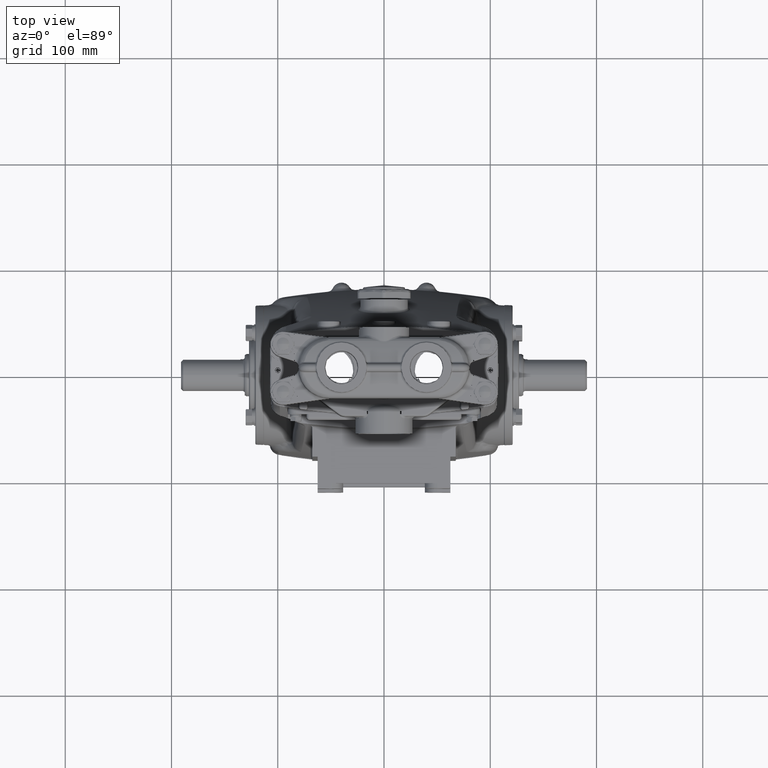
[diagram: clean part render]
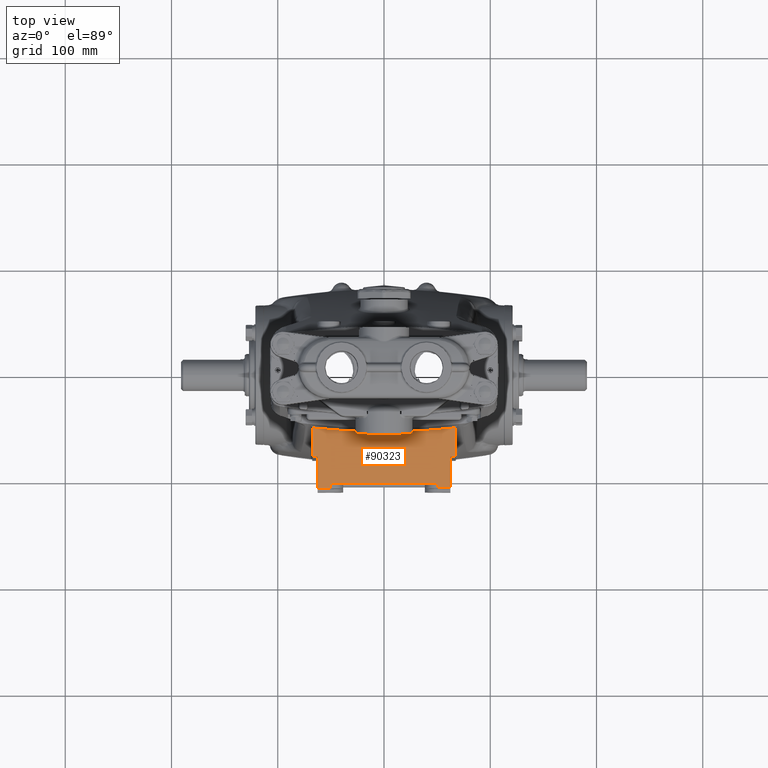
[diagram: same view with one face highlighted and labeled with its STEP entity id]
A machine part, top view. The second image highlights one B-rep face of the part: STEP entity #90323.
In plain terms, the highlighted planar face has unit normal (0, 0, -1).
Its self-contained STEP definition (entity closure, byte-faithful):
#57 = CARTESIAN_POINT ( 'NONE',  ( -2.657480314960630086, 19685.03937007874265, 7.519685039370077817 ) ) ;
#1021 = CARTESIAN_POINT ( 'NONE',  ( 2.216167371312572687, -2.133921736559586613, 7.519685039370080482 ) ) ;
#1441 = CARTESIAN_POINT ( 'NONE',  ( -2.460629921259841701, 19685.03937007874265, 7.519685039370078705 ) ) ;
#2178 = CARTESIAN_POINT ( 'NONE',  ( -2.657480314960630086, -3.149606299212598604, 7.519685039370077817 ) ) ;
#2653 = CARTESIAN_POINT ( 'NONE',  ( -2.657480314960634082, -2.088214653054334846, 7.519685039370078705 ) ) ;
#3544 = DIRECTION ( 'NONE',  ( 1.000000000000000000, -0.000000000000000000, -0.000000000000000000 ) ) ;
#3834 = LINE ( 'NONE', #92589, #95593 ) ;
#4233 = CARTESIAN_POINT ( 'NONE',  ( -2.657559491806077645, -2.086138464083541866, 7.519685039370078705 ) ) ;
#5397 = LINE ( 'NONE', #70849, #78034 ) ;
#6057 = VECTOR ( 'NONE', #72678, 39.37007874015748143 ) ;
#6653 = PLANE ( 'NONE',  #32123 ) ;
#7728 = LINE ( 'NONE', #15095, #6057 ) ;
#8548 = VERTEX_POINT ( 'NONE', #82896 ) ;
#8901 = ORIENTED_EDGE ( 'NONE', *, *, #57869, .T. ) ;
#8943 = CARTESIAN_POINT ( 'NONE',  ( -6.927127178268874649E-16, -2.233563264182857999, 7.519685039370078705 ) ) ;
#9696 = EDGE_CURVE ( 'NONE', #8548, #75186, #48101, .T. ) ;
#10825 = EDGE_CURVE ( 'NONE', #88389, #22255, #5397, .T. ) ;
#11100 = CARTESIAN_POINT ( 'NONE',  ( -2.657480314960630086, -2.090289336285340749, 7.519685039370077817 ) ) ;
#12173 = CARTESIAN_POINT ( 'NONE',  ( -1.988188976377950112, -4.133858267716535195, 7.519685039370078705 ) ) ;
#14349 = DIRECTION ( 'NONE',  ( -1.000000000000000000, -0.000000000000000000, -0.000000000000000000 ) ) ;
#15095 = CARTESIAN_POINT ( 'NONE',  ( -1.988188976377950556, -4.291338582676395674, 7.519685039370078705 ) ) ;
#16917 = DIRECTION ( 'NONE',  ( -0.000000000000000000, -1.000000000000000000, -0.000000000000000000 ) ) ;
#17223 = VECTOR ( 'NONE', #3544, 39.37007874015748143 ) ;
#17271 = CARTESIAN_POINT ( 'NONE',  ( -2.657480314960630086, -3.149606299212598604, 7.519685039370077817 ) ) ;
#17874 = ORIENTED_EDGE ( 'NONE', *, *, #103480, .T. ) ;
#19702 = VERTEX_POINT ( 'NONE', #71812 ) ;
#19805 = VECTOR ( 'NONE', #14349, 39.37007874015748143 ) ;
#19954 = EDGE_CURVE ( 'NONE', #102189, #19702, #47814, .T. ) ;
#20053 = CARTESIAN_POINT ( 'NONE',  ( -2.216167371312541601, -2.133921736559592830, 7.519685039370080482 ) ) ;
#20179 = DIRECTION ( 'NONE',  ( 0.000000000000000000, -1.000000000000000000, -0.000000000000000000 ) ) ;
#21609 = B_SPLINE_CURVE_WITH_KNOTS ( 'NONE', 3,
 ( #26920, #4233, #2653, #11100 ),
 .UNSPECIFIED., .F., .F.,
 ( 4, 4 ),
 ( 0.000000000000000000, 0.0001580908622162033002 ),
 .UNSPECIFIED. ) ;
#21611 = CARTESIAN_POINT ( 'NONE',  ( -6.927127178268874649E-16, -2.233563264182857999, 7.519685039370078705 ) ) ;
#22255 = VERTEX_POINT ( 'NONE', #74145 ) ;
#22261 = VECTOR ( 'NONE', #45956, 39.37007874015748143 ) ;
#22593 = CARTESIAN_POINT ( 'NONE',  ( 2.657559491806074981, -2.086138464083594712, 7.519685039370078705 ) ) ;
#22788 = LINE ( 'NONE', #62927, #19805 ) ;
#23875 = EDGE_CURVE ( 'NONE', #53139, #88389, #29560, .T. ) ;
#24572 = ORIENTED_EDGE ( 'NONE', *, *, #45606, .F. ) ;
#25333 = ORIENTED_EDGE ( 'NONE', *, *, #89369, .T. ) ;
#26176 = ORIENTED_EDGE ( 'NONE', *, *, #101534, .T. ) ;
#26354 = DIRECTION ( 'NONE',  ( 0.000000000000000000, -1.000000000000000000, -0.000000000000000000 ) ) ;
#26749 = CARTESIAN_POINT ( 'NONE',  ( -1.988188976377950556, 19685.03937007874265, 7.519685039370078705 ) ) ;
#26920 = CARTESIAN_POINT ( 'NONE',  ( -2.657717525373034739, -2.084069808505191634, 7.519685039370078705 ) ) ;
#29503 = CARTESIAN_POINT ( 'NONE',  ( -0.4443542664897027206, -2.233563264182857999, 7.519685039370078705 ) ) ;
#29560 = LINE ( 'NONE', #53875, #22261 ) ;
#32123 = AXIS2_PLACEMENT_3D ( 'NONE', #57688, #95393, #70560 ) ;
#32553 = DIRECTION ( 'NONE',  ( -0.000000000000000000, -1.000000000000000000, -0.000000000000000000 ) ) ;
#37568 = DIRECTION ( 'NONE',  ( -1.000000000000000000, 0.000000000000000000, 0.000000000000000000 ) ) ;
#37778 = LINE ( 'NONE', #77955, #17223 ) ;
#37804 = ORIENTED_EDGE ( 'NONE', *, *, #81413, .F. ) ;
#38043 = VECTOR ( 'NONE', #26354, 39.37007874015748143 ) ;
#38183 = CARTESIAN_POINT ( 'NONE',  ( 2.657480314960630086, -2.090289336285340749, 7.519685039370077817 ) ) ;
#38309 = FACE_OUTER_BOUND ( 'NONE', #89767, .T. ) ;
#38834 = VERTEX_POINT ( 'NONE', #12173 ) ;
#40362 = EDGE_CURVE ( 'NONE', #19702, #80501, #67491, .T. ) ;
#40978 = VECTOR ( 'NONE', #57627, 39.37007874015748143 ) ;
#41163 = VERTEX_POINT ( 'NONE', #81008 ) ;
#41689 = CARTESIAN_POINT ( 'NONE',  ( 2.460629921259841701, 19685.03937007874265, 7.519685039370078705 ) ) ;
#45606 = EDGE_CURVE ( 'NONE', #22255, #48671, #67036, .T. ) ;
#45956 = DIRECTION ( 'NONE',  ( 0.000000000000000000, -1.000000000000000000, -0.000000000000000000 ) ) ;
#47814 = B_SPLINE_CURVE_WITH_KNOTS ( 'NONE', 3,
 ( #49051, #1021, #89732, #89218, #50109, #8943 ),
 .UNSPECIFIED., .F., .F.,
 ( 4, 2, 4 ),
 ( -6.053836689116898128E-06, 0.03380031263407504843, 0.06760667910483923737 ),
 .UNSPECIFIED. ) ;
#48101 = LINE ( 'NONE', #57, #68101 ) ;
#48259 = VERTEX_POINT ( 'NONE', #86556 ) ;
#48671 = VERTEX_POINT ( 'NONE', #75668 ) ;
#48726 = EDGE_CURVE ( 'NONE', #41163, #75819, #3834, .T. ) ;
#49051 = CARTESIAN_POINT ( 'NONE',  ( 2.657717525373036072, -2.084069808505191190, 7.519685039370078705 ) ) ;
#49416 = EDGE_CURVE ( 'NONE', #38834, #48259, #98629, .T. ) ;
#50109 = CARTESIAN_POINT ( 'NONE',  ( 0.4443542664897018879, -2.233563264182857555, 7.519685039370078705 ) ) ;
#51918 = CARTESIAN_POINT ( 'NONE',  ( 2.657480314960630086, -3.149606299212598604, 7.519685039370077817 ) ) ;
#53139 = VERTEX_POINT ( 'NONE', #38183 ) ;
#53875 = CARTESIAN_POINT ( 'NONE',  ( 2.657480314960630086, 19685.03937007874265, 7.519685039370077817 ) ) ;
#55356 = CARTESIAN_POINT ( 'NONE',  ( 2.657717525373036072, -2.084069808505191190, 7.519685039370078705 ) ) ;
#57627 = DIRECTION ( 'NONE',  ( 1.000000000000000000, 0.000000000000000000, 0.000000000000000000 ) ) ;
#57688 = CARTESIAN_POINT ( 'NONE',  ( -1.988188976377950556, 19685.03937007874265, 7.519685039370078705 ) ) ;
#57869 = EDGE_CURVE ( 'NONE', #80501, #8548, #21609, .T. ) ;
#58090 = ORIENTED_EDGE ( 'NONE', *, *, #9696, .T. ) ;
#60585 = ORIENTED_EDGE ( 'NONE', *, *, #83323, .T. ) ;
#61650 = ORIENTED_EDGE ( 'NONE', *, *, #49416, .F. ) ;
#62927 = CARTESIAN_POINT ( 'NONE',  ( -2.460629921259841701, -4.133858267716535195, 7.519685039370078705 ) ) ;
#64539 = ORIENTED_EDGE ( 'NONE', *, *, #48726, .T. ) ;
#65055 = ORIENTED_EDGE ( 'NONE', *, *, #40362, .T. ) ;
#65852 = EDGE_CURVE ( 'NONE', #102184, #48259, #37778, .T. ) ;
#66081 = B_SPLINE_CURVE_WITH_KNOTS ( 'NONE', 3,
 ( #95532, #78092, #22593, #55356 ),
 .UNSPECIFIED., .F., .F.,
 ( 4, 4 ),
 ( 1.083267794737359837E-14, 0.0001580908622270445630 ),
 .UNSPECIFIED. ) ;
#67036 = LINE ( 'NONE', #41689, #38043 ) ;
#67491 = B_SPLINE_CURVE_WITH_KNOTS ( 'NONE', 3,
 ( #21611, #29503, #92464, #86051, #20053, #85031 ),
 .UNSPECIFIED., .F., .F.,
 ( 4, 2, 4 ),
 ( 3.890387882894678876E-19, 0.03380636647076414730, 0.06761273294152829461 ),
 .UNSPECIFIED. ) ;
#68101 = VECTOR ( 'NONE', #16917, 39.37007874015748143 ) ;
#70560 = DIRECTION ( 'NONE',  ( -1.000000000000000000, 0.000000000000000000, -0.000000000000000000 ) ) ;
#70603 = ORIENTED_EDGE ( 'NONE', *, *, #10825, .F. ) ;
#70849 = CARTESIAN_POINT ( 'NONE',  ( 2.657480314960630086, -3.149606299212598604, 7.519685039370077817 ) ) ;
#71812 = CARTESIAN_POINT ( 'NONE',  ( -6.927127178268874649E-16, -2.233563264182857999, 7.519685039370078705 ) ) ;
#72678 = DIRECTION ( 'NONE',  ( 1.000000000000000000, 0.000000000000000000, 0.000000000000000000 ) ) ;
#74145 = CARTESIAN_POINT ( 'NONE',  ( 2.460629921259842590, -3.149606299212598604, 7.519685039370077817 ) ) ;
#75186 = VERTEX_POINT ( 'NONE', #17271 ) ;
#75668 = CARTESIAN_POINT ( 'NONE',  ( 2.460629921259841701, -4.291338582676395674, 7.519685039370078705 ) ) ;
#75819 = VERTEX_POINT ( 'NONE', #84226 ) ;
#76373 = ORIENTED_EDGE ( 'NONE', *, *, #19954, .T. ) ;
#77955 = CARTESIAN_POINT ( 'NONE',  ( -1.988188976377950556, -4.330708661417323135, 7.519685039370078705 ) ) ;
#78034 = VECTOR ( 'NONE', #37568, 39.37007874015748143 ) ;
#78092 = CARTESIAN_POINT ( 'NONE',  ( 2.657480314960630086, -2.088214653054440983, 7.519685039370159529 ) ) ;
#78748 = VECTOR ( 'NONE', #82765, 39.37007874015748143 ) ;
#79682 = VERTEX_POINT ( 'NONE', #96969 ) ;
#79945 = CARTESIAN_POINT ( 'NONE',  ( -2.657717525373034739, -2.084069808505191634, 7.519685039370078705 ) ) ;
#80501 = VERTEX_POINT ( 'NONE', #79945 ) ;
#81008 = CARTESIAN_POINT ( 'NONE',  ( 1.988188976377950112, -4.133858267716535195, 7.519685039370078705 ) ) ;
#81413 = EDGE_CURVE ( 'NONE', #41163, #38834, #22788, .T. ) ;
#82765 = DIRECTION ( 'NONE',  ( -0.000000000000000000, -1.000000000000000000, -0.000000000000000000 ) ) ;
#82896 = CARTESIAN_POINT ( 'NONE',  ( -2.657480314960630086, -2.090289336285340749, 7.519685039370077817 ) ) ;
#82897 = ORIENTED_EDGE ( 'NONE', *, *, #23875, .F. ) ;
#83323 = EDGE_CURVE ( 'NONE', #79682, #102184, #89107, .T. ) ;
#84226 = CARTESIAN_POINT ( 'NONE',  ( 1.988188976377950556, -4.291338582676395674, 7.519685039370078705 ) ) ;
#84684 = ORIENTED_EDGE ( 'NONE', *, *, #65852, .T. ) ;
#85031 = CARTESIAN_POINT ( 'NONE',  ( -2.657717525373034739, -2.084069808505191634, 7.519685039370078705 ) ) ;
#85852 = VECTOR ( 'NONE', #32553, 39.37007874015748143 ) ;
#86051 = CARTESIAN_POINT ( 'NONE',  ( -1.773910464993446068, -2.171216771117161048, 7.519685039370077817 ) ) ;
#86556 = CARTESIAN_POINT ( 'NONE',  ( -1.988188976377950556, -4.330708661417323135, 7.519685039370078705 ) ) ;
#86692 = CARTESIAN_POINT ( 'NONE',  ( -2.460629921259841701, -4.330708661417323135, 7.519685039370078705 ) ) ;
#87224 = CARTESIAN_POINT ( 'NONE',  ( 2.657717525373036072, -2.084069808505191190, 7.519685039370078705 ) ) ;
#88389 = VERTEX_POINT ( 'NONE', #51918 ) ;
#89107 = LINE ( 'NONE', #1441, #85852 ) ;
#89218 = CARTESIAN_POINT ( 'NONE',  ( 0.8880031665036631772, -2.221022023670201850, 7.519685039370074264 ) ) ;
#89369 = EDGE_CURVE ( 'NONE', #75186, #79682, #99386, .T. ) ;
#89732 = CARTESIAN_POINT ( 'NONE',  ( 1.773910464993445402, -2.171216771117151279, 7.519685039370078705 ) ) ;
#89767 = EDGE_LOOP ( 'NONE', ( #64539, #26176, #24572, #70603, #82897, #17874, #76373, #65055, #8901, #58090, #25333, #60585, #84684, #61650, #37804 ) ) ;
#90323 = ADVANCED_FACE ( 'NONE', ( #38309 ), #6653, .F. ) ;
#92464 = CARTESIAN_POINT ( 'NONE',  ( -0.8880031665036636213, -2.221022023670193413, 7.519685039370080482 ) ) ;
#92589 = CARTESIAN_POINT ( 'NONE',  ( 1.988188976377950556, 19685.03937007874265, 7.519685039370078705 ) ) ;
#95393 = DIRECTION ( 'NONE',  ( 0.000000000000000000, 0.000000000000000000, -1.000000000000000000 ) ) ;
#95532 = CARTESIAN_POINT ( 'NONE',  ( 2.657480314960630086, -2.090289336285340749, 7.519685039370077817 ) ) ;
#95593 = VECTOR ( 'NONE', #20179, 39.37007874015748143 ) ;
#96969 = CARTESIAN_POINT ( 'NONE',  ( -2.460629921259842590, -3.149606299212598604, 7.519685039370077817 ) ) ;
#98629 = LINE ( 'NONE', #26749, #78748 ) ;
#99386 = LINE ( 'NONE', #2178, #40978 ) ;
#101534 = EDGE_CURVE ( 'NONE', #75819, #48671, #7728, .T. ) ;
#102184 = VERTEX_POINT ( 'NONE', #86692 ) ;
#102189 = VERTEX_POINT ( 'NONE', #87224 ) ;
#103480 = EDGE_CURVE ( 'NONE', #53139, #102189, #66081, .T. ) ;